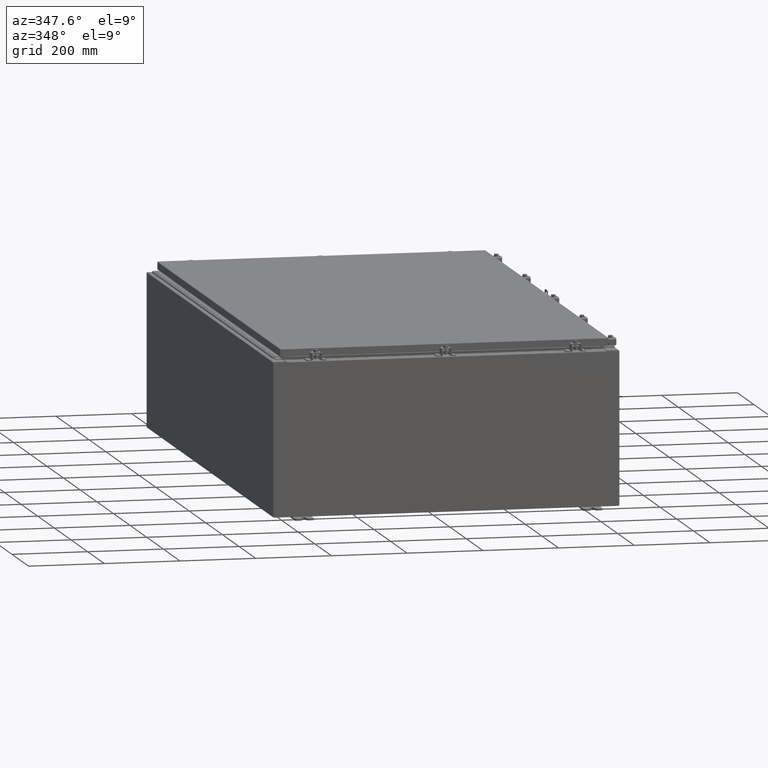
[diagram: clean part render]
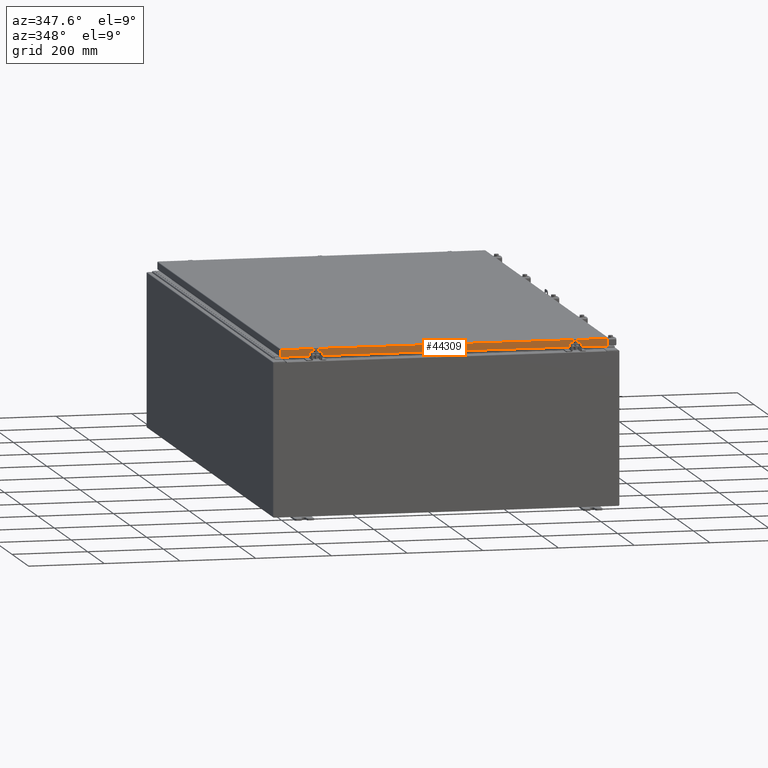
[diagram: same view with one face highlighted and labeled with its STEP entity id]
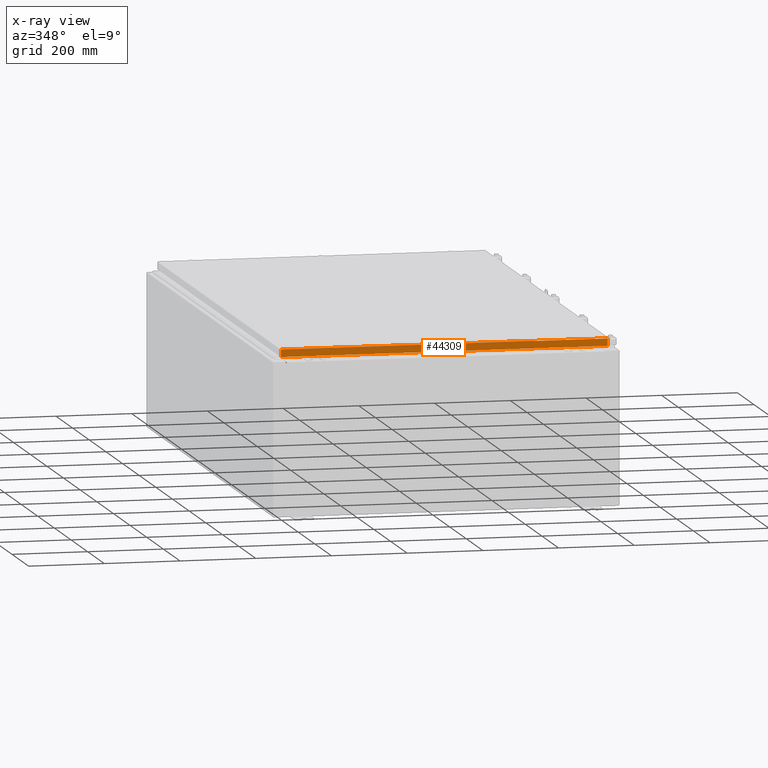
[diagram: x-ray of the same camera — body ghosted, the highlighted face saturated]
A machine part, auxiliary view. The second image highlights one B-rep face of the part: STEP entity #44309.
The next image is the same camera in x-ray: the body ghosted, the highlighted face saturated — about 0% of this face is hidden behind the body in this view.
In plain terms, the highlighted planar face has unit normal (-0, 1, -0).
Its self-contained STEP definition (entity closure, byte-faithful):
#2153 = CARTESIAN_POINT ( 'NONE',  ( -16.98915786437626700, -29.09400000000000100, 1.642858579540496700E-013 ) ) ;
#2310 = EDGE_CURVE ( 'NONE', #5938, #3658, #18768, .T. ) ;
#2737 = ORIENTED_EDGE ( 'NONE', *, *, #2310, .F. ) ;
#3658 = VERTEX_POINT ( 'NONE', #26012 ) ;
#3850 = DIRECTION ( 'NONE',  ( -1.000000000000000000, -0.0000000000000000000, 1.239713195391617100E-016 ) ) ;
#5938 = VERTEX_POINT ( 'NONE', #33998 ) ;
#6646 = ORIENTED_EDGE ( 'NONE', *, *, #46057, .F. ) ;
#6689 = FACE_OUTER_BOUND ( 'NONE', #21385, .T. ) ;
#7064 = DIRECTION ( 'NONE',  ( 0.0000000000000000000, -5.637761885544721800E-015, -1.000000000000000000 ) ) ;
#7417 = EDGE_CURVE ( 'NONE', #8487, #10179, #30380, .T. ) ;
#8487 = VERTEX_POINT ( 'NONE', #44452 ) ;
#10179 = VERTEX_POINT ( 'NONE', #33599 ) ;
#14022 = VECTOR ( 'NONE', #51696, 39.37007874015748100 ) ;
#18207 = DIRECTION ( 'NONE',  ( -6.989207801985715000E-031, 1.000000000000000000, -5.637761885544721100E-015 ) ) ;
#18768 = LINE ( 'NONE', #40790, #40051 ) ;
#21385 = EDGE_LOOP ( 'NONE', ( #39558, #50030, #2737, #30715, #25677, #6646 ) ) ;
#21949 = VECTOR ( 'NONE', #7064, 39.37007874015748100 ) ;
#23176 = LINE ( 'NONE', #55654, #34550 ) ;
#23434 = LINE ( 'NONE', #2153, #21949 ) ;
#24545 = LINE ( 'NONE', #55902, #48980 ) ;
#25654 = EDGE_CURVE ( 'NONE', #10179, #5938, #54367, .T. ) ;
#25677 = ORIENTED_EDGE ( 'NONE', *, *, #7417, .F. ) ;
#26012 = CARTESIAN_POINT ( 'NONE',  ( -16.98915786437626700, -29.09400000000000500, -0.8499999999999954300 ) ) ;
#26477 = DIRECTION ( 'NONE',  ( -0.0000000000000000000, -5.637761885544721800E-015, -1.000000000000000000 ) ) ;
#27748 = PLANE ( 'NONE',  #41023 ) ;
#29013 = EDGE_CURVE ( 'NONE', #57896, #3658, #23434, .T. ) ;
#30380 = LINE ( 'NONE', #42788, #43326 ) ;
#30715 = ORIENTED_EDGE ( 'NONE', *, *, #25654, .F. ) ;
#33599 = CARTESIAN_POINT ( 'NONE',  ( 16.23915786437626400, -29.09400000000000800, -0.8499999999999994200 ) ) ;
#33998 = CARTESIAN_POINT ( 'NONE',  ( -16.23915786437626000, -29.09400000000000800, -0.8499999999999994200 ) ) ;
#34550 = VECTOR ( 'NONE', #26477, 39.37007874015748100 ) ;
#35355 = EDGE_CURVE ( 'NONE', #57896, #51461, #24545, .T. ) ;
#37085 = CARTESIAN_POINT ( 'NONE',  ( -16.98915786437626700, -29.09400000000000100, -0.08769999999999547600 ) ) ;
#39558 = ORIENTED_EDGE ( 'NONE', *, *, #35355, .F. ) ;
#40051 = VECTOR ( 'NONE', #55494, 39.37007874015748100 ) ;
#40790 = CARTESIAN_POINT ( 'NONE',  ( 17.07800000000000300, -29.09400000000000500, -0.8499999999999996400 ) ) ;
#41023 = AXIS2_PLACEMENT_3D ( 'NONE', #47378, #18207, #52311 ) ;
#41212 = DIRECTION ( 'NONE',  ( 1.000000000000000000, 6.989207801985715800E-031, -3.922586267643549700E-045 ) ) ;
#42788 = CARTESIAN_POINT ( 'NONE',  ( 17.07800000000000300, -29.09400000000000500, -0.8499999999999996400 ) ) ;
#43326 = VECTOR ( 'NONE', #3850, 39.37007874015748100 ) ;
#44309 = ADVANCED_FACE ( 'NONE', ( #6689 ), #27748, .F. ) ;
#44452 = CARTESIAN_POINT ( 'NONE',  ( 16.98915786437627100, -29.09400000000000500, -0.8499999999999996400 ) ) ;
#46057 = EDGE_CURVE ( 'NONE', #51461, #8487, #23176, .T. ) ;
#46776 = CARTESIAN_POINT ( 'NONE',  ( 16.23915786437626400, -29.09400000000000800, -0.8499999999999994200 ) ) ;
#47378 = CARTESIAN_POINT ( 'NONE',  ( 2.033440117909723900E-029, -29.09400000000000100, 1.642858579540496700E-013 ) ) ;
#48980 = VECTOR ( 'NONE', #41212, 39.37007874015748100 ) ;
#49693 = CARTESIAN_POINT ( 'NONE',  ( 16.98915786437627100, -29.09400000000000100, -0.08769999999999549000 ) ) ;
#50030 = ORIENTED_EDGE ( 'NONE', *, *, #29013, .T. ) ;
#51461 = VERTEX_POINT ( 'NONE', #49693 ) ;
#51696 = DIRECTION ( 'NONE',  ( -1.000000000000000000, 0.0000000000000000000, 0.0000000000000000000 ) ) ;
#52311 = DIRECTION ( 'NONE',  ( 0.0000000000000000000, 5.637761885544721100E-015, 1.000000000000000000 ) ) ;
#54367 = LINE ( 'NONE', #46776, #14022 ) ;
#55494 = DIRECTION ( 'NONE',  ( -1.000000000000000000, -0.0000000000000000000, 1.239713195391617100E-016 ) ) ;
#55654 = CARTESIAN_POINT ( 'NONE',  ( 16.98915786437627100, -29.09400000000000100, -0.07469999999999958600 ) ) ;
#55902 = CARTESIAN_POINT ( 'NONE',  ( 17.07800000000000300, -29.09400000000000100, -0.08769999999999547600 ) ) ;
#57896 = VERTEX_POINT ( 'NONE', #37085 ) ;